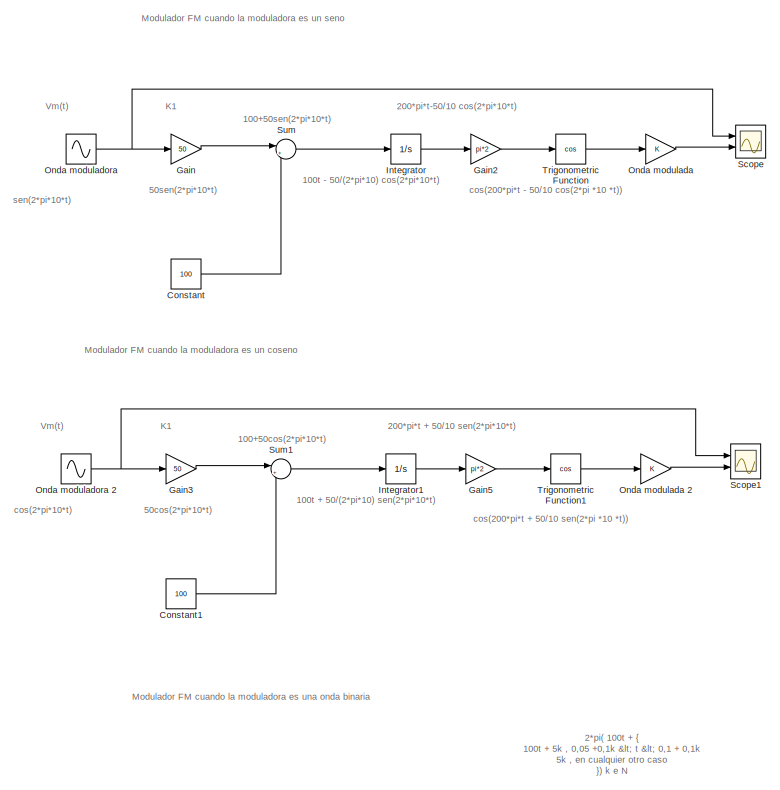
[diagram: root canvas - part 1/3, top left region]
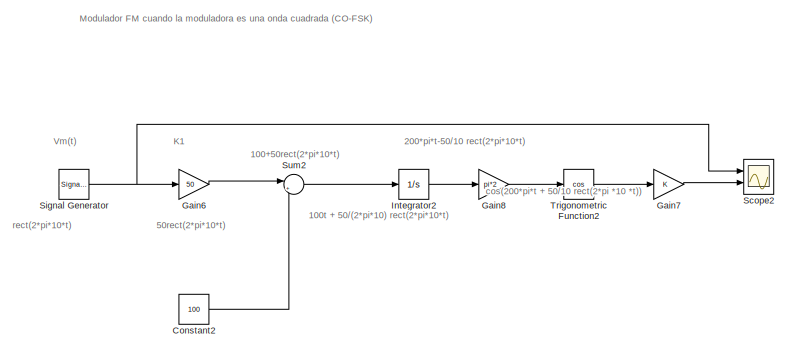
[diagram: root canvas - part 2/3, middle right region]
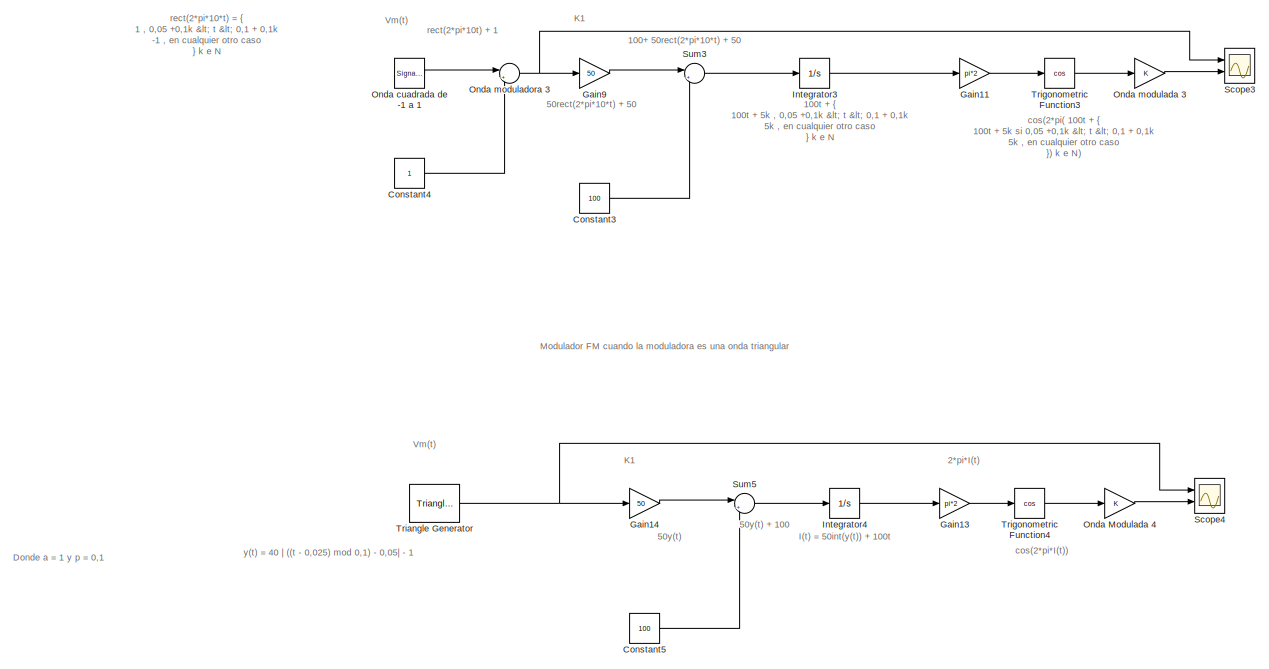
[diagram: root canvas - part 3/3, bottom left region]
MODEL slx_a17311dafac5
KIND model
CONFIG AbsTol = auto
CONFIG EnableMultiTasking = off
CONFIG FixedStep = auto
CONFIG MaxStep = auto
CONFIG MinStep = auto
CONFIG RelTol = 1e-3
CONFIG SampleTimeConstraint = Unconstrained
CONFIG SolverName = VariableStepAuto
CONFIG StartTime = 0.0
CONFIG StopTime = 0.5
BLOCK [Constant] Constant
  Value = 100
BLOCK [Constant] Constant1
  Value = 100
BLOCK [Constant] Constant2
  Commented = on
  Value = 100
BLOCK [Constant] Constant3
  Value = 100
BLOCK [Constant] Constant4
BLOCK [Constant] Constant5
  Value = 100
BLOCK [Gain] Gain
  Gain = 50
BLOCK [Gain] Gain11
  Gain = pi*2
BLOCK [Gain] Gain13
  Gain = pi*2
BLOCK [Gain] Gain14
  Gain = 50
BLOCK [Gain] Gain2
  Gain = pi*2
BLOCK [Gain] Gain3
  Gain = 50
BLOCK [Gain] Gain5
  Gain = pi*2
BLOCK [Gain] Gain6
  Commented = on
  Gain = 50
BLOCK [Gain] Gain7
  Commented = on
BLOCK [Gain] Gain8
  Commented = on
  Gain = pi*2
BLOCK [Gain] Gain9
  Gain = 50
BLOCK [Integrator] Integrator
  Ports = [1, 1]
BLOCK [Integrator] Integrator1
  Ports = [1, 1]
BLOCK [Integrator] Integrator2
  Commented = on
  Ports = [1, 1]
BLOCK [Integrator] Integrator3
  Ports = [1, 1]
BLOCK [Integrator] Integrator4
  Ports = [1, 1]
BLOCK [Gain] Onda Modulada 4
BLOCK [SignalGenerator] Onda cuadrada de -1 a 1
  Frequency = 2*pi*10
  Ports = [0, 1]
  Units = rad/sec
  WaveForm = square
BLOCK [Gain] Onda modulada
BLOCK [Gain] Onda modulada 2
BLOCK [Gain] Onda modulada 3
BLOCK [Sin] Onda moduladora
  Frequency = 2*pi*10
  Ports = [0, 1]
  SampleTime = 1/10000
BLOCK [Sin] Onda moduladora 2
  Frequency = 2*pi*10
  Phase = 90
  Ports = [0, 1]
  SampleTime = 1/10000
BLOCK [Sum] Onda moduladora 3
  Inputs = |++
  Ports = [2, 1]
BLOCK [Scope] Scope
  Floating = off
  NumInputPorts = 2
  Ports = [2]
  ScopeSpecificationString = Simulink.scopes.TimeScopeBlockCfg('CurrentConfiguration', extmgr.ConfigurationSet(extmgr.Configuration('Core','General UI',true),extmgr.Configuration('Core','Source UI',true),extmgr.Configuration('Sources','WiredSimulink',true),extmgr.Configuration('Visuals','Time Domain',true,'SerializedDisplays',{struct('MinYLimReal','-5.00000','MaxYLimReal','5.00000','YLabelReal','','MinYLimMag','0.00000','MaxY...<+1551ch>
BLOCK [Scope] Scope1
  Floating = off
  NumInputPorts = 2
  Ports = [2]
  ScopeSpecificationString = Simulink.scopes.TimeScopeBlockCfg('CurrentConfiguration', extmgr.ConfigurationSet(extmgr.Configuration('Core','General UI',true),extmgr.Configuration('Core','Source UI',true),extmgr.Configuration('Sources','WiredSimulink',true,'DataLoggingVariableName','ScopeData1'),extmgr.Configuration('Visuals','Time Domain',true,'SerializedDisplays',{struct('MinYLimReal','-5.00000','MaxYLimReal','5.00000','YLab...<+1594ch>
BLOCK [Scope] Scope2
  Commented = on
  Floating = off
  NumInputPorts = 2
  Ports = [2]
  ScopeSpecificationString = Simulink.scopes.TimeScopeBlockCfg('CurrentConfiguration', extmgr.ConfigurationSet(extmgr.Configuration('Core','General UI',true),extmgr.Configuration('Core','Source UI',true),extmgr.Configuration('Sources','WiredSimulink',true,'DataLoggingVariableName','ScopeData2'),extmgr.Configuration('Visuals','Time Domain',true,'SerializedDisplays',{struct('MinYLimReal','-5.00000','MaxYLimReal','5.00000','YLab...<+1484ch>
BLOCK [Scope] Scope3
  Floating = off
  NumInputPorts = 2
  Ports = [2]
  ScopeSpecificationString = Simulink.scopes.TimeScopeBlockCfg('CurrentConfiguration', extmgr.ConfigurationSet(extmgr.Configuration('Core','General UI',true),extmgr.Configuration('Core','Source UI',true),extmgr.Configuration('Sources','WiredSimulink',true,'DataLoggingVariableName','ScopeData3'),extmgr.Configuration('Visuals','Time Domain',true,'SerializedDisplays',{struct('MinYLimReal','-5.00000','MaxYLimReal','5.00000','YLab...<+1620ch>
BLOCK [Scope] Scope4
  Floating = off
  NumInputPorts = 2
  Ports = [2]
  ScopeSpecificationString = Simulink.scopes.TimeScopeBlockCfg('CurrentConfiguration', extmgr.ConfigurationSet(extmgr.Configuration('Core','General UI',true),extmgr.Configuration('Core','Source UI',true),extmgr.Configuration('Sources','WiredSimulink',true,'DataLoggingVariableName','ScopeData4'),extmgr.Configuration('Visuals','Time Domain',true,'SerializedDisplays',{struct('MinYLimReal','-5.00000','MaxYLimReal','5.00000','YLab...<+1621ch>
BLOCK [SignalGenerator] Signal Generator
  Commented = on
  Frequency = 2*pi*10
  Ports = [0, 1]
  Units = rad/sec
  WaveForm = square
BLOCK [Sum] Sum
  Inputs = |++
  Ports = [2, 1]
BLOCK [Sum] Sum1
  Inputs = |++
  Ports = [2, 1]
BLOCK [Sum] Sum2
  Commented = on
  Inputs = |++
  Ports = [2, 1]
BLOCK [Sum] Sum3
  Inputs = |++
  Ports = [2, 1]
BLOCK [Sum] Sum5
  Inputs = |++
  Ports = [2, 1]
BLOCK [Reference] Triangle Generator  REF=spsTriangleGeneratorLib/Triangle
Generator
  Ports = [0, 1]
  SourceBlock = spsTriangleGeneratorLib/Triangle\nGenerator
  SourceProductBaseCode = PS
  SourceType = Triangle Generator
BLOCK [Trigonometry] Trigonometric Function
  Operator = cos
  Ports = [1, 1]
BLOCK [Trigonometry] Trigonometric Function1
  Operator = cos
  Ports = [1, 1]
BLOCK [Trigonometry] Trigonometric Function2
  Commented = on
  Operator = cos
  Ports = [1, 1]
BLOCK [Trigonometry] Trigonometric Function3
  Operator = cos
  Ports = [1, 1]
BLOCK [Trigonometry] Trigonometric Function4
  Operator = cos
  Ports = [1, 1]
ANNOTATION (root): 100+ 50rect(2*pi*10*t) + 50
ANNOTATION (root): 100+50cos(2*pi*10*t)
ANNOTATION (root): 100+50rect(2*pi*10*t)
ANNOTATION (root): 100+50sen(2*pi*10*t)
ANNOTATION (root): 100t + 50/(2*pi*10) rect(2*pi*10*t)
ANNOTATION (root): 100t + 50/(2*pi*10) sen(2*pi*10*t)
ANNOTATION (root): 100t - 50/(2*pi*10) cos(2*pi*10*t)
ANNOTATION (root): 2*pi*I(t)
ANNOTATION (root): 200*pi*t + 50/10 sen(2*pi*10*t)
ANNOTATION (root): 200*pi*t-50/10 cos(2*pi*10*t)
ANNOTATION (root): 200*pi*t-50/10 rect(2*pi*10*t)
ANNOTATION (root): 50cos(2*pi*10*t)
ANNOTATION (root): 50rect(2*pi*10*t)
ANNOTATION (root): 50rect(2*pi*10*t) + 50
ANNOTATION (root): 50sen(2*pi*10*t)
ANNOTATION (root): 50y(t)
ANNOTATION (root): 50y(t) + 100
ANNOTATION (root): Modulador FM cuando la moduladora es una onda binaria
ANNOTATION (root): Modulador FM cuando la moduladora es una onda cuadrada (CO-FSK)
ANNOTATION (root): Modulador FM cuando la moduladora es una onda triangular
ANNOTATION (root): 100t + { 100t + 5k , 0,05 +0,1k < t < 0,1 + 0,1k 5k , en cualquier otro caso } k e N
ANNOTATION (root): 2*pi( 100t + { 100t + 5k , 0,05 +0,1k < t < 0,1 + 0,1k 5k , en cualquier otro caso }) k e N
ANNOTATION (root): cos(2*pi( 100t + { 100t + 5k si 0,05 +0,1k < t < 0,1 + 0,1k 5k , en cualquier otro caso }) k e N)
ANNOTATION (root): rect(2*pi*10*t) = { 1 , 0,05 +0,1k < t < 0,1 + 0,1k -1 , en cualquier otro caso } k e N
ANNOTATION (root): y(t) = 40 | ((t - 0,025) mod 0,1) - 0,05| - 1
ANNOTATION (root): Modulador FM cuando la moduladora es un coseno
ANNOTATION (root): Modulador FM cuando la moduladora es un seno
ANNOTATION (root): Donde a = 1 y p = 0,1
ANNOTATION (root): I(t) = 50int(y(t)) + 100t
ANNOTATION (root): K1
ANNOTATION (root): Vm(t)
ANNOTATION (root): cos(2*pi*10*t)
ANNOTATION (root): cos(2*pi*I(t))
ANNOTATION (root): cos(200*pi*t + 50/10 rect(2*pi *10 *t))
ANNOTATION (root): cos(200*pi*t + 50/10 sen(2*pi *10 *t))
ANNOTATION (root): cos(200*pi*t - 50/10 cos(2*pi *10 *t))
ANNOTATION (root): rect(2*pi*10*t)
ANNOTATION (root): rect(2*pi*10t) + 1
ANNOTATION (root): sen(2*pi*10*t)
LINE Constant1:1 -> Sum1:2
LINE Constant2:1 -> Sum2:2
LINE Constant3:1 -> Sum3:2
LINE Constant4:1 -> Onda moduladora 3:2
LINE Constant5:1 -> Sum5:2
LINE Constant:1 -> Sum:2
LINE Gain11:1 -> Trigonometric Function3:1
LINE Gain13:1 -> Trigonometric Function4:1
LINE Gain14:1 -> Sum5:1
LINE Gain2:1 -> Trigonometric Function:1
LINE Gain3:1 -> Sum1:1
LINE Gain5:1 -> Trigonometric Function1:1
LINE Gain6:1 -> Sum2:1
LINE Gain7:1 -> Scope2:2
LINE Gain8:1 -> Trigonometric Function2:1
LINE Gain9:1 -> Sum3:1
LINE Gain:1 -> Sum:1
LINE Integrator1:1 -> Gain5:1
LINE Integrator2:1 -> Gain8:1
LINE Integrator3:1 -> Gain11:1
LINE Integrator4:1 -> Gain13:1
LINE Integrator:1 -> Gain2:1
LINE Onda Modulada 4:1 -> Scope4:2
LINE Onda cuadrada de -1 a 1:1 -> Onda moduladora 3:1
LINE Onda modulada 2:1 -> Scope1:2
LINE Onda modulada 3:1 -> Scope3:2
LINE Onda modulada:1 -> Scope:2
NET Onda moduladora 2:1 -> Gain3:1, Scope1:1
NET Onda moduladora 3:1 -> Gain9:1, Scope3:1
NET Onda moduladora:1 -> Gain:1, Scope:1
NET Signal Generator:1 -> Gain6:1, Scope2:1
LINE Sum1:1 -> Integrator1:1
LINE Sum2:1 -> Integrator2:1
LINE Sum3:1 -> Integrator3:1
LINE Sum5:1 -> Integrator4:1
LINE Sum:1 -> Integrator:1
NET Triangle Generator:1 -> Gain14:1, Scope4:1
LINE Trigonometric Function1:1 -> Onda modulada 2:1
LINE Trigonometric Function2:1 -> Gain7:1
LINE Trigonometric Function3:1 -> Onda modulada 3:1
LINE Trigonometric Function4:1 -> Onda Modulada 4:1
LINE Trigonometric Function:1 -> Onda modulada:1
note: NET lines group one-source signal fan-out (src -> all destinations, sorted); 1:1 wires keep LINE
